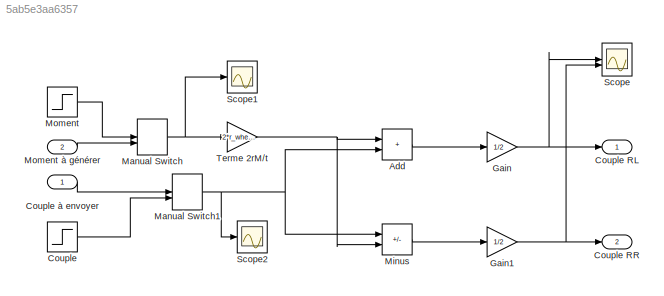
MODEL slx_5ab5e3aa6357
KIND model
CONFIG AbsTol = auto
CONFIG EnableMultiTasking = off
CONFIG FixedStep = auto
CONFIG MaxStep = auto
CONFIG MinStep = auto
CONFIG RelTol = 1e-3
CONFIG SampleTimeConstraint = Unconstrained
CONFIG SolverName = FixedStepAuto
CONFIG StartTime = 0.0
CONFIG StopTime = 5
BLOCK [Sum] Add
  IconShape = rectangular
BLOCK [Step] Couple
  After = 300
  SampleTime = 0
  Time = 0
BLOCK [Outport] Couple RL
BLOCK [Outport] Couple RR
  Port = 2
BLOCK [Inport] Couple à envoyer
BLOCK [Gain] Gain
  Gain = 1/2
BLOCK [Gain] Gain1
  Gain = 1/2
BLOCK [ManualSwitch] Manual Switch
  CurrentSetting = 0
BLOCK [ManualSwitch] Manual Switch1
BLOCK [Sum] Minus
  IconShape = rectangular
  Inputs = +-
BLOCK [Step] Moment
  After = 50
  SampleTime = 0
BLOCK [Inport] Moment à générer
  Port = 2
BLOCK [Scope] Scope
  Floating = off
  NumInputPorts = 2
  ScopeSpecificationString = Simulink.scopes.TimeScopeBlockCfg('CurrentConfiguration', extmgr.ConfigurationSet(extmgr.Configuration('Core','General UI',true),extmgr.Configuration('Core','Source UI',true),extmgr.Configuration('Sources','WiredSimulink',true),extmgr.Configuration('Visuals','Time Domain',true,'SerializedDisplays',{struct('MinYLimReal','137.76042','MaxYLimReal','162.23958','YLabelReal','','MinYLimMag','137.76042',...<+1435ch>
BLOCK [Scope] Scope1
  Floating = off
  NumInputPorts = 1
  ScopeSpecificationString = Simulink.scopes.TimeScopeBlockCfg('CurrentConfiguration', extmgr.ConfigurationSet(extmgr.Configuration('Core','General UI',true),extmgr.Configuration('Core','Source UI',true),extmgr.Configuration('Sources','WiredSimulink',true,'DataLoggingVariableName','ScopeData1'),extmgr.Configuration('Visuals','Time Domain',true,'SerializedDisplays',{struct('MinYLimReal','-6.25','MaxYLimReal','56.25','YLabelRea...<+1447ch>
BLOCK [Scope] Scope2
  Floating = off
  NumInputPorts = 1
  ScopeSpecificationString = Simulink.scopes.TimeScopeBlockCfg('CurrentConfiguration', extmgr.ConfigurationSet(extmgr.Configuration('Core','General UI',true),extmgr.Configuration('Core','Source UI',true),extmgr.Configuration('Sources','WiredSimulink',true,'DataLoggingVariableName','ScopeData2'),extmgr.Configuration('Visuals','Time Domain',true,'SerializedDisplays',{struct('MinYLimReal','200.00000','MaxYLimReal','400.00000','Y...<+1476ch>
BLOCK [Gain] Terme 2rM//t
  Gain = 2*r_wheels/tr
LINE Add:1 -> Gain:1
LINE Couple à envoyer:1 -> Manual Switch1:1
LINE Couple:1 -> Manual Switch1:2
NET Gain1:1 -> Couple RR:1, Scope:2
NET Gain:1 -> Couple RL:1, Scope:1
NET Manual Switch1:1 -> Add:2, Minus:1, Scope2:1
NET Manual Switch:1 -> Scope1:1, Terme 2rM//t:1
LINE Minus:1 -> Gain1:1
LINE Moment à générer:1 -> Manual Switch:2
LINE Moment:1 -> Manual Switch:1
NET Terme 2rM//t:1 -> Add:1, Minus:2
note: NET lines group one-source signal fan-out (src -> all destinations, sorted); 1:1 wires keep LINE
